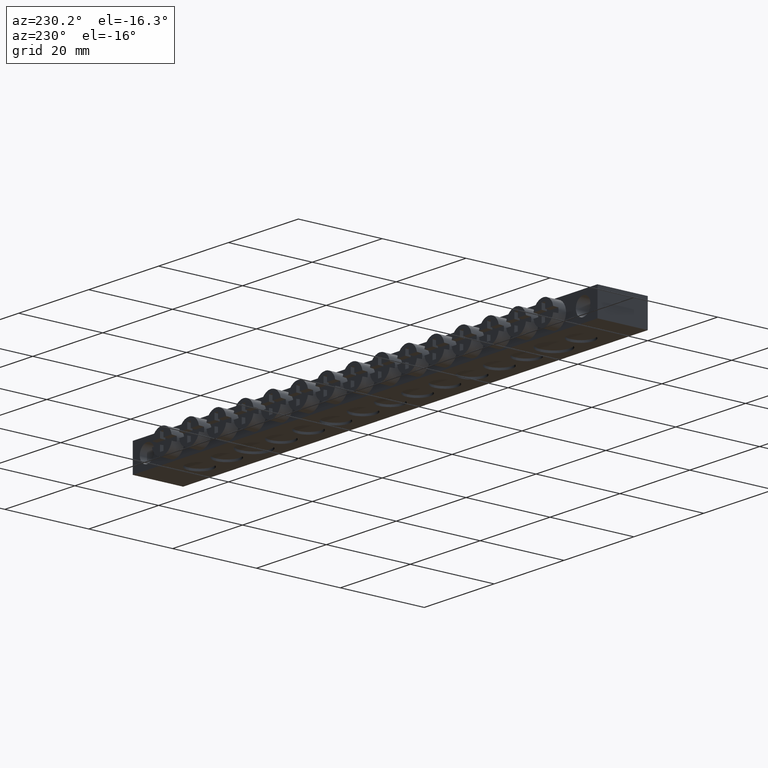
[diagram: clean part render]
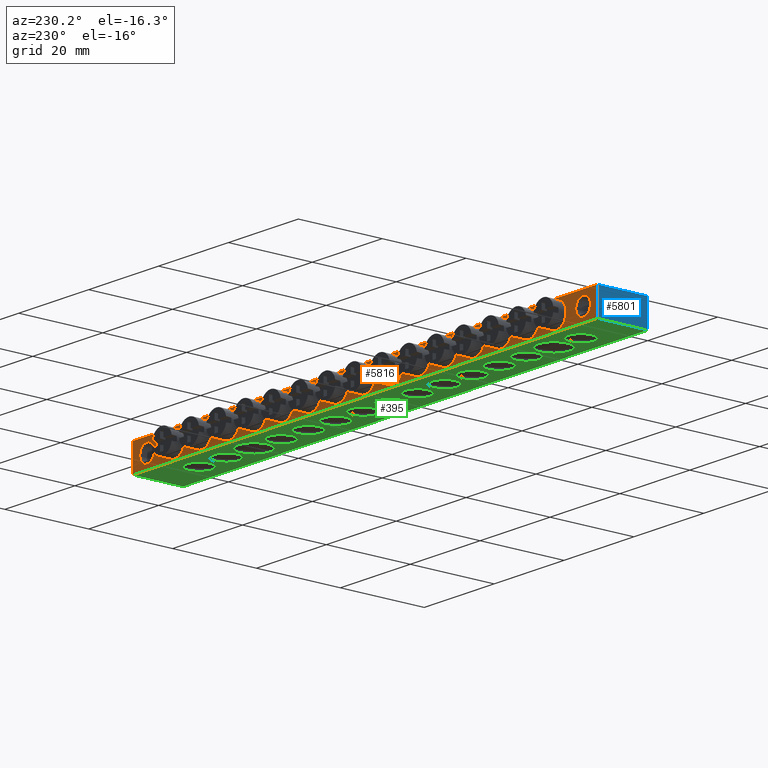
[diagram: same view with three faces highlighted in distinct colors, each labeled with its STEP entity id]
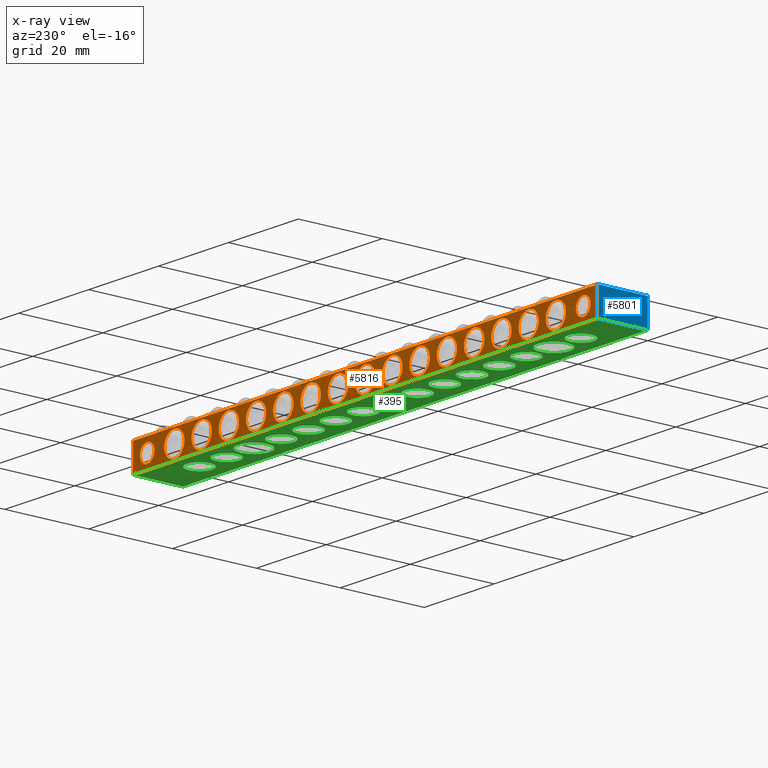
[diagram: x-ray of the same camera — body ghosted, the three highlighted faces saturated]
A machine part, auxiliary view with three faces highlighted in distinct colors.
The next image is the same camera in x-ray (body ghosted, the three faces saturated) — at least one of them is partly hidden behind the body in this view.
Their STEP definitions:

[orange] entity #5816 — the highlighted planar face has unit normal (0, -1, 0).
#119 = EDGE_CURVE ( 'NONE', #9495, #9546, #8546, .T. ) ;
#125 = EDGE_CURVE ( 'NONE', #9516, #9494, #8547, .T. ) ;
#130 = EDGE_CURVE ( 'NONE', #1650, #1657, #8539, .T. ) ;
#151 = EDGE_CURVE ( 'NONE', #1658, #1626, #8524, .T. ) ;
#173 = EDGE_CURVE ( 'NONE', #1634, #1649, #1105, .T. ) ;
#176 = EDGE_CURVE ( 'NONE', #5258, #5246, #1262, .T. ) ;
#197 = EDGE_CURVE ( 'NONE', #5463, #5439, #1327, .T. ) ;
#209 = EDGE_CURVE ( 'NONE', #5427, #5410, #971, .T. ) ;
#229 = EDGE_CURVE ( 'NONE', #4861, #5259, #1026, .T. ) ;
#243 = EDGE_CURVE ( 'NONE', #5260, #5244, #3627, .T. ) ;
#566 = EDGE_CURVE ( 'NONE', #5406, #5418, #6302, .T. ) ;
#572 = EDGE_CURVE ( 'NONE', #1162, #1170, #8514, .T. ) ;
#591 = EDGE_CURVE ( 'NONE', #5462, #5425, #6453, .T. ) ;
#600 = EDGE_CURVE ( 'NONE', #9534, #9518, #6481, .T. ) ;
#619 = EDGE_CURVE ( 'NONE', #5412, #5270, #6450, .T. ) ;
#971 = CIRCLE ( 'NONE', #1010, 2.899999999999999900 ) ;
#1010 = AXIS2_PLACEMENT_3D ( 'NONE', #7545, #7531, #7539 ) ;
#1026 = CIRCLE ( 'NONE', #1042, 2.899999999999999900 ) ;
#1042 = AXIS2_PLACEMENT_3D ( 'NONE', #7659, #7637, #7651 ) ;
#1105 = CIRCLE ( 'NONE', #1200, 2.899999999999999900 ) ;
#1162 = VERTEX_POINT ( 'NONE', #9141 ) ;
#1170 = VERTEX_POINT ( 'NONE', #9155 ) ;
#1183 = EDGE_LOOP ( 'NONE', ( #4802, #4773 ) ) ;
#1186 = EDGE_LOOP ( 'NONE', ( #4795, #4800 ) ) ;
#1190 = EDGE_LOOP ( 'NONE', ( #4798, #4776 ) ) ;
#1193 = EDGE_LOOP ( 'NONE', ( #4826, #4778 ) ) ;
#1198 = EDGE_LOOP ( 'NONE', ( #4818, #4809 ) ) ;
#1199 = EDGE_LOOP ( 'NONE', ( #4785, #4799 ) ) ;
#1200 = AXIS2_PLACEMENT_3D ( 'NONE', #1858, #1845, #1870 ) ;
#1202 = EDGE_LOOP ( 'NONE', ( #4827, #4821 ) ) ;
#1210 = EDGE_LOOP ( 'NONE', ( #4788, #4810 ) ) ;
#1224 = EDGE_LOOP ( 'NONE', ( #4792, #4789 ) ) ;
#1228 = EDGE_LOOP ( 'NONE', ( #4797, #4782 ) ) ;
#1232 = EDGE_LOOP ( 'NONE', ( #4784, #4775 ) ) ;
#1245 = EDGE_LOOP ( 'NONE', ( #4793, #4783, #4817, #4780 ) ) ;
#1249 = EDGE_LOOP ( 'NONE', ( #4786, #4770 ) ) ;
#1254 = AXIS2_PLACEMENT_3D ( 'NONE', #1855, #1856, #1857 ) ;
#1262 = CIRCLE ( 'NONE', #1254, 2.899999999999999900 ) ;
#1271 = EDGE_LOOP ( 'NONE', ( #4803, #4805 ) ) ;
#1279 = EDGE_LOOP ( 'NONE', ( #4811, #4812 ) ) ;
#1286 = EDGE_LOOP ( 'NONE', ( #4779, #4828 ) ) ;
#1327 = CIRCLE ( 'NONE', #1349, 2.899999999999999900 ) ;
#1349 = AXIS2_PLACEMENT_3D ( 'NONE', #7499, #7480, #7524 ) ;
#1551 = EDGE_LOOP ( 'NONE', ( #4769, #4768 ) ) ;
#1569 = EDGE_LOOP ( 'NONE', ( #4777, #4813 ) ) ;
#1578 = VERTEX_POINT ( 'NONE', #9124 ) ;
#1586 = VERTEX_POINT ( 'NONE', #9129 ) ;
#1618 = VERTEX_POINT ( 'NONE', #9153 ) ;
#1626 = VERTEX_POINT ( 'NONE', #9181 ) ;
#1634 = VERTEX_POINT ( 'NONE', #9222 ) ;
#1649 = VERTEX_POINT ( 'NONE', #9185 ) ;
#1650 = VERTEX_POINT ( 'NONE', #9207 ) ;
#1654 = VERTEX_POINT ( 'NONE', #9208 ) ;
#1657 = VERTEX_POINT ( 'NONE', #9200 ) ;
#1658 = VERTEX_POINT ( 'NONE', #9202 ) ;
#1659 = VERTEX_POINT ( 'NONE', #9203 ) ;
#1670 = DIRECTION ( 'NONE',  ( -0.0000000000000000000, 1.000000000000000000, -0.0000000000000000000 ) ) ;
#1674 = DIRECTION ( 'NONE',  ( 0.0000000000000000000, 0.0000000000000000000, -1.000000000000000000 ) ) ;
#1680 = CARTESIAN_POINT ( 'NONE',  ( 97.70000000000000300, 12.00000000000000000, 3.250000000000004000 ) ) ;
#1681 = DIRECTION ( 'NONE',  ( -0.0000000000000000000, 1.000000000000000000, -0.0000000000000000000 ) ) ;
#1684 = DIRECTION ( 'NONE',  ( 0.0000000000000000000, 0.0000000000000000000, -1.000000000000000000 ) ) ;
#1685 = CARTESIAN_POINT ( 'NONE',  ( 89.90000000000000600, 12.00000000000000000, 3.250000000000004000 ) ) ;
#1686 = VERTEX_POINT ( 'NONE', #9214 ) ;
#1688 = VERTEX_POINT ( 'NONE', #9215 ) ;
#1709 = DIRECTION ( 'NONE',  ( -0.0000000000000000000, 1.000000000000000000, -0.0000000000000000000 ) ) ;
#1710 = DIRECTION ( 'NONE',  ( 0.0000000000000000000, 0.0000000000000000000, -1.000000000000000000 ) ) ;
#1721 = CARTESIAN_POINT ( 'NONE',  ( 105.5000000000000100, 12.00000000000000000, 3.250000000000004000 ) ) ;
#1777 = CARTESIAN_POINT ( 'NONE',  ( 121.1000000000000100, 12.00000000000000000, 3.250000000000004000 ) ) ;
#1778 = DIRECTION ( 'NONE',  ( -0.0000000000000000000, 1.000000000000000000, -0.0000000000000000000 ) ) ;
#1779 = DIRECTION ( 'NONE',  ( 0.0000000000000000000, 0.0000000000000000000, -1.000000000000000000 ) ) ;
#1845 = DIRECTION ( 'NONE',  ( -0.0000000000000000000, 1.000000000000000000, -0.0000000000000000000 ) ) ;
#1855 = CARTESIAN_POINT ( 'NONE',  ( 27.50000000000002500, 12.00000000000000000, 3.250000000000004000 ) ) ;
#1856 = DIRECTION ( 'NONE',  ( -0.0000000000000000000, 1.000000000000000000, -0.0000000000000000000 ) ) ;
#1857 = DIRECTION ( 'NONE',  ( 0.0000000000000000000, 0.0000000000000000000, -1.000000000000000000 ) ) ;
#1858 = CARTESIAN_POINT ( 'NONE',  ( 113.3000000000000100, 12.00000000000000000, 3.250000000000004000 ) ) ;
#1870 = DIRECTION ( 'NONE',  ( 0.0000000000000000000, 0.0000000000000000000, -1.000000000000000000 ) ) ;
#3019 = CARTESIAN_POINT ( 'NONE',  ( 4.099999999999992500, 12.00000000000000000, 1.150000000000023900 ) ) ;
#3047 = CARTESIAN_POINT ( 'NONE',  ( 82.10397707256291300, 12.00000000000000000, 0.3500027270885571800 ) ) ;
#3061 = CARTESIAN_POINT ( 'NONE',  ( 97.70397707256290700, 12.00000000000000000, 0.3500027270885571800 ) ) ;
#3089 = CARTESIAN_POINT ( 'NONE',  ( 97.69602292743711300, 12.00000000000000000, 6.149997272911451600 ) ) ;
#3099 = CARTESIAN_POINT ( 'NONE',  ( 89.89602292743710200, 12.00000000000000000, 6.149997272911451600 ) ) ;
#3100 = CARTESIAN_POINT ( 'NONE',  ( 82.09602292743710400, 12.00000000000000000, 6.149997272911451600 ) ) ;
#3104 = CARTESIAN_POINT ( 'NONE',  ( 89.90397707256291000, 12.00000000000000000, 0.3500027270885571800 ) ) ;
#3627 = CIRCLE ( 'NONE', #3628, 2.899999999999999900 ) ;
#3628 = AXIS2_PLACEMENT_3D ( 'NONE', #7712, #7676, #7689 ) ;
#3711 = CARTESIAN_POINT ( 'NONE',  ( 50.89602292743710900, 12.00000000000000000, 6.149997272911451600 ) ) ;
#3727 = CARTESIAN_POINT ( 'NONE',  ( 35.29602292743710000, 12.00000000000000000, 6.149997272911451600 ) ) ;
#3831 = FACE_BOUND ( 'NONE', #1569, .T. ) ;
#3832 = PLANE ( 'NONE',  #6766 ) ;
#3833 = FACE_BOUND ( 'NONE', #1279, .T. ) ;
#3834 = CARTESIAN_POINT ( 'NONE',  ( 0.0000000000000000000, 12.00000000000000000, 6.500000000000000000 ) ) ;
#3835 = FACE_BOUND ( 'NONE', #1228, .T. ) ;
#3836 = FACE_BOUND ( 'NONE', #1183, .T. ) ;
#3837 = DIRECTION ( 'NONE',  ( 0.0000000000000000000, -1.000000000000000000, 0.0000000000000000000 ) ) ;
#3843 = FACE_BOUND ( 'NONE', #1224, .T. ) ;
#3848 = FACE_BOUND ( 'NONE', #1202, .T. ) ;
#3849 = FACE_BOUND ( 'NONE', #1190, .T. ) ;
#3850 = DIRECTION ( 'NONE',  ( 0.0000000000000000000, -0.0000000000000000000, -1.000000000000000000 ) ) ;
#3854 = FACE_BOUND ( 'NONE', #1551, .T. ) ;
#3855 = FACE_OUTER_BOUND ( 'NONE', #1245, .T. ) ;
#3856 = FACE_BOUND ( 'NONE', #1198, .T. ) ;
#3858 = FACE_BOUND ( 'NONE', #1232, .T. ) ;
#3860 = FACE_BOUND ( 'NONE', #1286, .T. ) ;
#3863 = FACE_BOUND ( 'NONE', #1199, .T. ) ;
#3864 = FACE_BOUND ( 'NONE', #1193, .T. ) ;
#3865 = FACE_BOUND ( 'NONE', #1271, .T. ) ;
#3867 = FACE_BOUND ( 'NONE', #1186, .T. ) ;
#3869 = FACE_BOUND ( 'NONE', #1249, .T. ) ;
#3872 = FACE_BOUND ( 'NONE', #1210, .T. ) ;
#4090 = CARTESIAN_POINT ( 'NONE',  ( 43.10397707256292000, 12.00000000000000000, 0.3500027270885576200 ) ) ;
#4110 = CARTESIAN_POINT ( 'NONE',  ( 58.70397707256292800, 12.00000000000000000, 0.3500027270885576200 ) ) ;
#4112 = CARTESIAN_POINT ( 'NONE',  ( 66.49602292743711000, 12.00000000000000000, 6.149997272911451600 ) ) ;
#4117 = CARTESIAN_POINT ( 'NONE',  ( 43.09602292743710400, 12.00000000000000000, 6.149997272911451600 ) ) ;
#4119 = CARTESIAN_POINT ( 'NONE',  ( 35.30397707256292300, 12.00000000000000000, 0.3500027270885576200 ) ) ;
#4121 = CARTESIAN_POINT ( 'NONE',  ( 50.90397707256292400, 12.00000000000000000, 0.3500027270885576200 ) ) ;
#4126 = CARTESIAN_POINT ( 'NONE',  ( 58.69602292743710600, 12.00000000000000000, 6.149997272911451600 ) ) ;
#4147 = EDGE_CURVE ( 'NONE', #5259, #4861, #6527, .T. ) ;
#4159 = EDGE_CURVE ( 'NONE', #5439, #5463, #6551, .T. ) ;
#4161 = EDGE_CURVE ( 'NONE', #1626, #1658, #6584, .T. ) ;
#4164 = EDGE_CURVE ( 'NONE', #5270, #5412, #6609, .T. ) ;
#4165 = EDGE_CURVE ( 'NONE', #5244, #5260, #6622, .T. ) ;
#4169 = EDGE_CURVE ( 'NONE', #5418, #5406, #6600, .T. ) ;
#4178 = EDGE_CURVE ( 'NONE', #1688, #1686, #9347, .T. ) ;
#4185 = EDGE_CURVE ( 'NONE', #1686, #1618, #8487, .T. ) ;
#4186 = EDGE_CURVE ( 'NONE', #1170, #1162, #6596, .T. ) ;
#4187 = EDGE_CURVE ( 'NONE', #1657, #1650, #6598, .T. ) ;
#4255 = EDGE_CURVE ( 'NONE', #1688, #1659, #8229, .T. ) ;
#4256 = EDGE_CURVE ( 'NONE', #9494, #9516, #6693, .T. ) ;
#4257 = EDGE_CURVE ( 'NONE', #9546, #9495, #6704, .T. ) ;
#4258 = EDGE_CURVE ( 'NONE', #5410, #5427, #6714, .T. ) ;
#4261 = EDGE_CURVE ( 'NONE', #5425, #5462, #6735, .T. ) ;
#4265 = EDGE_CURVE ( 'NONE', #9518, #9534, #6700, .T. ) ;
#4266 = EDGE_CURVE ( 'NONE', #1649, #1634, #6724, .T. ) ;
#4267 = EDGE_CURVE ( 'NONE', #5246, #5258, #6726, .T. ) ;
#4296 = AXIS2_PLACEMENT_3D ( 'NONE', #8885, #8853, #8895 ) ;
#4768 = ORIENTED_EDGE ( 'NONE', *, *, #5927, .F. ) ;
#4769 = ORIENTED_EDGE ( 'NONE', *, *, #5914, .F. ) ;
#4770 = ORIENTED_EDGE ( 'NONE', *, *, #4256, .F. ) ;
#4773 = ORIENTED_EDGE ( 'NONE', *, *, #4266, .F. ) ;
#4775 = ORIENTED_EDGE ( 'NONE', *, *, #4187, .F. ) ;
#4776 = ORIENTED_EDGE ( 'NONE', *, *, #4169, .F. ) ;
#4777 = ORIENTED_EDGE ( 'NONE', *, *, #151, .F. ) ;
#4778 = ORIENTED_EDGE ( 'NONE', *, *, #4186, .F. ) ;
#4779 = ORIENTED_EDGE ( 'NONE', *, *, #197, .F. ) ;
#4780 = ORIENTED_EDGE ( 'NONE', *, *, #4255, .T. ) ;
#4782 = ORIENTED_EDGE ( 'NONE', *, *, #5930, .F. ) ;
#4783 = ORIENTED_EDGE ( 'NONE', *, *, #4185, .F. ) ;
#4784 = ORIENTED_EDGE ( 'NONE', *, *, #130, .F. ) ;
#4785 = ORIENTED_EDGE ( 'NONE', *, *, #119, .F. ) ;
#4786 = ORIENTED_EDGE ( 'NONE', *, *, #125, .F. ) ;
#4788 = ORIENTED_EDGE ( 'NONE', *, *, #176, .F. ) ;
#4789 = ORIENTED_EDGE ( 'NONE', *, *, #4261, .F. ) ;
#4792 = ORIENTED_EDGE ( 'NONE', *, *, #591, .F. ) ;
#4793 = ORIENTED_EDGE ( 'NONE', *, *, #5908, .T. ) ;
#4795 = ORIENTED_EDGE ( 'NONE', *, *, #600, .F. ) ;
#4797 = ORIENTED_EDGE ( 'NONE', *, *, #5915, .F. ) ;
#4798 = ORIENTED_EDGE ( 'NONE', *, *, #566, .F. ) ;
#4799 = ORIENTED_EDGE ( 'NONE', *, *, #4257, .F. ) ;
#4800 = ORIENTED_EDGE ( 'NONE', *, *, #4265, .F. ) ;
#4802 = ORIENTED_EDGE ( 'NONE', *, *, #173, .F. ) ;
#4803 = ORIENTED_EDGE ( 'NONE', *, *, #229, .F. ) ;
#4805 = ORIENTED_EDGE ( 'NONE', *, *, #4147, .F. ) ;
#4809 = ORIENTED_EDGE ( 'NONE', *, *, #4258, .F. ) ;
#4810 = ORIENTED_EDGE ( 'NONE', *, *, #4267, .F. ) ;
#4811 = ORIENTED_EDGE ( 'NONE', *, *, #243, .F. ) ;
#4812 = ORIENTED_EDGE ( 'NONE', *, *, #4165, .F. ) ;
#4813 = ORIENTED_EDGE ( 'NONE', *, *, #4161, .F. ) ;
#4817 = ORIENTED_EDGE ( 'NONE', *, *, #4178, .F. ) ;
#4818 = ORIENTED_EDGE ( 'NONE', *, *, #209, .F. ) ;
#4821 = ORIENTED_EDGE ( 'NONE', *, *, #4164, .F. ) ;
#4826 = ORIENTED_EDGE ( 'NONE', *, *, #572, .F. ) ;
#4827 = ORIENTED_EDGE ( 'NONE', *, *, #619, .F. ) ;
#4828 = ORIENTED_EDGE ( 'NONE', *, *, #4159, .F. ) ;
#4861 = VERTEX_POINT ( 'NONE', #8355 ) ;
#5244 = VERTEX_POINT ( 'NONE', #8478 ) ;
#5246 = VERTEX_POINT ( 'NONE', #8436 ) ;
#5258 = VERTEX_POINT ( 'NONE', #8469 ) ;
#5259 = VERTEX_POINT ( 'NONE', #8466 ) ;
#5260 = VERTEX_POINT ( 'NONE', #8471 ) ;
#5270 = VERTEX_POINT ( 'NONE', #8463 ) ;
#5406 = VERTEX_POINT ( 'NONE', #4126 ) ;
#5410 = VERTEX_POINT ( 'NONE', #4090 ) ;
#5412 = VERTEX_POINT ( 'NONE', #4112 ) ;
#5418 = VERTEX_POINT ( 'NONE', #4110 ) ;
#5425 = VERTEX_POINT ( 'NONE', #4121 ) ;
#5427 = VERTEX_POINT ( 'NONE', #4117 ) ;
#5439 = VERTEX_POINT ( 'NONE', #4119 ) ;
#5462 = VERTEX_POINT ( 'NONE', #3711 ) ;
#5463 = VERTEX_POINT ( 'NONE', #3727 ) ;
#5782 = AXIS2_PLACEMENT_3D ( 'NONE', #8871, #8880, #8889 ) ;
#5816 = ADVANCED_FACE ( 'NONE', ( #3835, #3854, #3855, #3831, #3836, #3858, #3869, #3863, #3867, #3864, #3848, #3849, #3843, #3856, #3860, #3872, #3833, #3865 ), #3832, .F. ) ;
#5908 = EDGE_CURVE ( 'NONE', #1659, #1618, #9687, .T. ) ;
#5914 = EDGE_CURVE ( 'NONE', #1654, #9448, #6357, .T. ) ;
#5915 = EDGE_CURVE ( 'NONE', #1578, #1586, #6364, .T. ) ;
#5927 = EDGE_CURVE ( 'NONE', #9448, #1654, #6345, .T. ) ;
#5930 = EDGE_CURVE ( 'NONE', #1586, #1578, #6369, .T. ) ;
#6302 = CIRCLE ( 'NONE', #4296, 2.899999999999999900 ) ;
#6322 = AXIS2_PLACEMENT_3D ( 'NONE', #9725, #9729, #9702 ) ;
#6331 = AXIS2_PLACEMENT_3D ( 'NONE', #9788, #9792, #9779 ) ;
#6345 = CIRCLE ( 'NONE', #6371, 2.100000000000000100 ) ;
#6354 = AXIS2_PLACEMENT_3D ( 'NONE', #9731, #9706, #9719 ) ;
#6357 = CIRCLE ( 'NONE', #6322, 2.100000000000000100 ) ;
#6364 = CIRCLE ( 'NONE', #6354, 2.099999999999989900 ) ;
#6369 = CIRCLE ( 'NONE', #6331, 2.099999999999989900 ) ;
#6371 = AXIS2_PLACEMENT_3D ( 'NONE', #9762, #9764, #9771 ) ;
#6450 = CIRCLE ( 'NONE', #6492, 2.899999999999999900 ) ;
#6453 = CIRCLE ( 'NONE', #6498, 2.899999999999999900 ) ;
#6469 = AXIS2_PLACEMENT_3D ( 'NONE', #9032, #9012, #9011 ) ;
#6481 = CIRCLE ( 'NONE', #6469, 2.899999999999999900 ) ;
#6492 = AXIS2_PLACEMENT_3D ( 'NONE', #9065, #9086, #9066 ) ;
#6498 = AXIS2_PLACEMENT_3D ( 'NONE', #8984, #8964, #8951 ) ;
#6502 = AXIS2_PLACEMENT_3D ( 'NONE', #9279, #9290, #9275 ) ;
#6527 = CIRCLE ( 'NONE', #6502, 2.899999999999999900 ) ;
#6551 = CIRCLE ( 'NONE', #6552, 2.899999999999999900 ) ;
#6552 = AXIS2_PLACEMENT_3D ( 'NONE', #9328, #9322, #9308 ) ;
#6579 = AXIS2_PLACEMENT_3D ( 'NONE', #9309, #9337, #9339 ) ;
#6584 = CIRCLE ( 'NONE', #6593, 2.899999999999999900 ) ;
#6592 = VECTOR ( 'NONE', #8505, 1000.000000000000000 ) ;
#6593 = AXIS2_PLACEMENT_3D ( 'NONE', #9329, #9331, #9340 ) ;
#6595 = AXIS2_PLACEMENT_3D ( 'NONE', #8491, #8489, #8492 ) ;
#6596 = CIRCLE ( 'NONE', #6605, 2.899999999999999900 ) ;
#6598 = CIRCLE ( 'NONE', #6595, 2.899999999999999900 ) ;
#6600 = CIRCLE ( 'NONE', #6620, 2.899999999999999900 ) ;
#6605 = AXIS2_PLACEMENT_3D ( 'NONE', #8506, #8494, #8498 ) ;
#6609 = CIRCLE ( 'NONE', #6626, 2.899999999999999900 ) ;
#6616 = VECTOR ( 'NONE', #9360, 1000.000000000000000 ) ;
#6620 = AXIS2_PLACEMENT_3D ( 'NONE', #9357, #9373, #9379 ) ;
#6622 = CIRCLE ( 'NONE', #6579, 2.899999999999999900 ) ;
#6626 = AXIS2_PLACEMENT_3D ( 'NONE', #9332, #9334, #9335 ) ;
#6693 = CIRCLE ( 'NONE', #6703, 2.899999999999999900 ) ;
#6694 = AXIS2_PLACEMENT_3D ( 'NONE', #8261, #8278, #8284 ) ;
#6699 = AXIS2_PLACEMENT_3D ( 'NONE', #8298, #8260, #8274 ) ;
#6700 = CIRCLE ( 'NONE', #6725, 2.899999999999999900 ) ;
#6703 = AXIS2_PLACEMENT_3D ( 'NONE', #8281, #8285, #8275 ) ;
#6704 = CIRCLE ( 'NONE', #6752, 2.899999999999999900 ) ;
#6706 = AXIS2_PLACEMENT_3D ( 'NONE', #8291, #8297, #8292 ) ;
#6714 = CIRCLE ( 'NONE', #6694, 2.899999999999999900 ) ;
#6724 = CIRCLE ( 'NONE', #6699, 2.899999999999999900 ) ;
#6725 = AXIS2_PLACEMENT_3D ( 'NONE', #8268, #8277, #8299 ) ;
#6726 = CIRCLE ( 'NONE', #6731, 2.899999999999999900 ) ;
#6730 = VECTOR ( 'NONE', #8248, 1000.000000000000000 ) ;
#6731 = AXIS2_PLACEMENT_3D ( 'NONE', #8267, #8271, #8272 ) ;
#6735 = CIRCLE ( 'NONE', #6706, 2.899999999999999900 ) ;
#6752 = AXIS2_PLACEMENT_3D ( 'NONE', #8283, #8282, #8265 ) ;
#6766 = AXIS2_PLACEMENT_3D ( 'NONE', #3834, #3837, #3850 ) ;
#6830 = VECTOR ( 'NONE', #9672, 1000.000000000000000 ) ;
#7480 = DIRECTION ( 'NONE',  ( -0.0000000000000000000, 1.000000000000000000, -0.0000000000000000000 ) ) ;
#7499 = CARTESIAN_POINT ( 'NONE',  ( 35.30000000000001100, 12.00000000000000000, 3.250000000000004000 ) ) ;
#7524 = DIRECTION ( 'NONE',  ( 0.0000000000000000000, 0.0000000000000000000, -1.000000000000000000 ) ) ;
#7531 = DIRECTION ( 'NONE',  ( -0.0000000000000000000, 1.000000000000000000, -0.0000000000000000000 ) ) ;
#7539 = DIRECTION ( 'NONE',  ( 0.0000000000000000000, 0.0000000000000000000, -1.000000000000000000 ) ) ;
#7545 = CARTESIAN_POINT ( 'NONE',  ( 43.10000000000001600, 12.00000000000000000, 3.250000000000004000 ) ) ;
#7637 = DIRECTION ( 'NONE',  ( -0.0000000000000000000, 1.000000000000000000, -0.0000000000000000000 ) ) ;
#7651 = DIRECTION ( 'NONE',  ( 0.0000000000000000000, 0.0000000000000000000, -1.000000000000000000 ) ) ;
#7659 = CARTESIAN_POINT ( 'NONE',  ( 11.90000000000002200, 12.00000000000000000, 3.250000000000004000 ) ) ;
#7676 = DIRECTION ( 'NONE',  ( -0.0000000000000000000, 1.000000000000000000, -0.0000000000000000000 ) ) ;
#7689 = DIRECTION ( 'NONE',  ( 0.0000000000000000000, 0.0000000000000000000, -1.000000000000000000 ) ) ;
#7712 = CARTESIAN_POINT ( 'NONE',  ( 19.70000000000002400, 12.00000000000000000, 3.250000000000004000 ) ) ;
#8229 = LINE ( 'NONE', #8245, #6730 ) ;
#8245 = CARTESIAN_POINT ( 'NONE',  ( 133.0000000000000000, 12.00000000000000000, 6.500000000000000000 ) ) ;
#8248 = DIRECTION ( 'NONE',  ( -0.0000000000000000000, -0.0000000000000000000, -1.000000000000000000 ) ) ;
#8260 = DIRECTION ( 'NONE',  ( -0.0000000000000000000, 1.000000000000000000, -0.0000000000000000000 ) ) ;
#8261 = CARTESIAN_POINT ( 'NONE',  ( 43.10000000000001600, 12.00000000000000000, 3.250000000000004000 ) ) ;
#8265 = DIRECTION ( 'NONE',  ( 0.0000000000000000000, 0.0000000000000000000, -1.000000000000000000 ) ) ;
#8267 = CARTESIAN_POINT ( 'NONE',  ( 27.50000000000002500, 12.00000000000000000, 3.250000000000004000 ) ) ;
#8268 = CARTESIAN_POINT ( 'NONE',  ( 82.10000000000000900, 12.00000000000000000, 3.250000000000004000 ) ) ;
#8271 = DIRECTION ( 'NONE',  ( -0.0000000000000000000, 1.000000000000000000, -0.0000000000000000000 ) ) ;
#8272 = DIRECTION ( 'NONE',  ( -1.196361017915039400E-015, 0.0000000000000000000, -1.000000000000000000 ) ) ;
#8274 = DIRECTION ( 'NONE',  ( 0.0000000000000000000, 0.0000000000000000000, -1.000000000000000000 ) ) ;
#8275 = DIRECTION ( 'NONE',  ( 0.0000000000000000000, 0.0000000000000000000, -1.000000000000000000 ) ) ;
#8277 = DIRECTION ( 'NONE',  ( -0.0000000000000000000, 1.000000000000000000, -0.0000000000000000000 ) ) ;
#8278 = DIRECTION ( 'NONE',  ( -0.0000000000000000000, 1.000000000000000000, -0.0000000000000000000 ) ) ;
#8281 = CARTESIAN_POINT ( 'NONE',  ( 97.70000000000000300, 12.00000000000000000, 3.250000000000004000 ) ) ;
#8282 = DIRECTION ( 'NONE',  ( -0.0000000000000000000, 1.000000000000000000, -0.0000000000000000000 ) ) ;
#8283 = CARTESIAN_POINT ( 'NONE',  ( 89.90000000000000600, 12.00000000000000000, 3.250000000000004000 ) ) ;
#8284 = DIRECTION ( 'NONE',  ( -2.392722035830078900E-015, 0.0000000000000000000, -1.000000000000000000 ) ) ;
#8285 = DIRECTION ( 'NONE',  ( -0.0000000000000000000, 1.000000000000000000, -0.0000000000000000000 ) ) ;
#8291 = CARTESIAN_POINT ( 'NONE',  ( 50.90000000000001300, 12.00000000000000000, 3.250000000000004000 ) ) ;
#8292 = DIRECTION ( 'NONE',  ( -2.392722035830078900E-015, 0.0000000000000000000, -1.000000000000000000 ) ) ;
#8297 = DIRECTION ( 'NONE',  ( -0.0000000000000000000, 1.000000000000000000, -0.0000000000000000000 ) ) ;
#8298 = CARTESIAN_POINT ( 'NONE',  ( 113.3000000000000100, 12.00000000000000000, 3.250000000000004000 ) ) ;
#8299 = DIRECTION ( 'NONE',  ( 0.0000000000000000000, 0.0000000000000000000, -1.000000000000000000 ) ) ;
#8355 = CARTESIAN_POINT ( 'NONE',  ( 11.89602292743711200, 12.00000000000000000, 6.149997272911451600 ) ) ;
#8436 = CARTESIAN_POINT ( 'NONE',  ( 27.50397707256293200, 12.00000000000000000, 0.3500027270885576200 ) ) ;
#8463 = CARTESIAN_POINT ( 'NONE',  ( 66.50397707256291800, 12.00000000000000000, 0.3500027270885571800 ) ) ;
#8466 = CARTESIAN_POINT ( 'NONE',  ( 11.90397707256293100, 12.00000000000000000, 0.3500027270885576200 ) ) ;
#8469 = CARTESIAN_POINT ( 'NONE',  ( 27.49602292743711400, 12.00000000000000000, 6.149997272911451600 ) ) ;
#8471 = CARTESIAN_POINT ( 'NONE',  ( 19.69602292743711300, 12.00000000000000000, 6.149997272911451600 ) ) ;
#8478 = CARTESIAN_POINT ( 'NONE',  ( 19.70397707256293200, 12.00000000000000000, 0.3500027270885576200 ) ) ;
#8487 = LINE ( 'NONE', #8504, #6592 ) ;
#8489 = DIRECTION ( 'NONE',  ( -0.0000000000000000000, 1.000000000000000000, -0.0000000000000000000 ) ) ;
#8491 = CARTESIAN_POINT ( 'NONE',  ( 105.5000000000000100, 12.00000000000000000, 3.250000000000004000 ) ) ;
#8492 = DIRECTION ( 'NONE',  ( 0.0000000000000000000, 0.0000000000000000000, -1.000000000000000000 ) ) ;
#8494 = DIRECTION ( 'NONE',  ( -0.0000000000000000000, 1.000000000000000000, -0.0000000000000000000 ) ) ;
#8498 = DIRECTION ( 'NONE',  ( 0.0000000000000000000, 0.0000000000000000000, -1.000000000000000000 ) ) ;
#8504 = CARTESIAN_POINT ( 'NONE',  ( 0.0000000000000000000, 12.00000000000000000, 6.500000000000000000 ) ) ;
#8505 = DIRECTION ( 'NONE',  ( -0.0000000000000000000, -0.0000000000000000000, -1.000000000000000000 ) ) ;
#8506 = CARTESIAN_POINT ( 'NONE',  ( 74.30000000000002600, 12.00000000000000000, 3.250000000000004000 ) ) ;
#8514 = CIRCLE ( 'NONE', #5782, 2.899999999999999900 ) ;
#8521 = AXIS2_PLACEMENT_3D ( 'NONE', #1777, #1778, #1779 ) ;
#8524 = CIRCLE ( 'NONE', #8521, 2.899999999999999900 ) ;
#8533 = AXIS2_PLACEMENT_3D ( 'NONE', #1685, #1670, #1674 ) ;
#8534 = AXIS2_PLACEMENT_3D ( 'NONE', #1680, #1681, #1684 ) ;
#8539 = CIRCLE ( 'NONE', #8540, 2.899999999999999900 ) ;
#8540 = AXIS2_PLACEMENT_3D ( 'NONE', #1721, #1709, #1710 ) ;
#8546 = CIRCLE ( 'NONE', #8533, 2.899999999999999900 ) ;
#8547 = CIRCLE ( 'NONE', #8534, 2.899999999999999900 ) ;
#8853 = DIRECTION ( 'NONE',  ( -0.0000000000000000000, 1.000000000000000000, -0.0000000000000000000 ) ) ;
#8871 = CARTESIAN_POINT ( 'NONE',  ( 74.30000000000002600, 12.00000000000000000, 3.250000000000004000 ) ) ;
#8880 = DIRECTION ( 'NONE',  ( -0.0000000000000000000, 1.000000000000000000, -0.0000000000000000000 ) ) ;
#8885 = CARTESIAN_POINT ( 'NONE',  ( 58.70000000000001700, 12.00000000000000000, 3.250000000000004000 ) ) ;
#8889 = DIRECTION ( 'NONE',  ( 0.0000000000000000000, 0.0000000000000000000, -1.000000000000000000 ) ) ;
#8895 = DIRECTION ( 'NONE',  ( 0.0000000000000000000, 0.0000000000000000000, -1.000000000000000000 ) ) ;
#8951 = DIRECTION ( 'NONE',  ( 0.0000000000000000000, 0.0000000000000000000, -1.000000000000000000 ) ) ;
#8964 = DIRECTION ( 'NONE',  ( -0.0000000000000000000, 1.000000000000000000, -0.0000000000000000000 ) ) ;
#8984 = CARTESIAN_POINT ( 'NONE',  ( 50.90000000000001300, 12.00000000000000000, 3.250000000000004000 ) ) ;
#9011 = DIRECTION ( 'NONE',  ( 0.0000000000000000000, 0.0000000000000000000, -1.000000000000000000 ) ) ;
#9012 = DIRECTION ( 'NONE',  ( -0.0000000000000000000, 1.000000000000000000, -0.0000000000000000000 ) ) ;
#9032 = CARTESIAN_POINT ( 'NONE',  ( 82.10000000000000900, 12.00000000000000000, 3.250000000000004000 ) ) ;
#9065 = CARTESIAN_POINT ( 'NONE',  ( 66.50000000000001400, 12.00000000000000000, 3.250000000000004000 ) ) ;
#9066 = DIRECTION ( 'NONE',  ( 0.0000000000000000000, 0.0000000000000000000, -1.000000000000000000 ) ) ;
#9086 = DIRECTION ( 'NONE',  ( -0.0000000000000000000, 1.000000000000000000, -0.0000000000000000000 ) ) ;
#9124 = CARTESIAN_POINT ( 'NONE',  ( 128.9000000000000100, 12.00000000000000000, 5.349999999999998800 ) ) ;
#9129 = CARTESIAN_POINT ( 'NONE',  ( 128.9000000000000100, 12.00000000000000000, 1.150000000000019500 ) ) ;
#9141 = CARTESIAN_POINT ( 'NONE',  ( 74.29602292743712200, 12.00000000000000000, 6.149997272911451600 ) ) ;
#9153 = CARTESIAN_POINT ( 'NONE',  ( 0.0000000000000000000, 12.00000000000000000, 0.0000000000000000000 ) ) ;
#9155 = CARTESIAN_POINT ( 'NONE',  ( 74.30397707256291500, 12.00000000000000000, 0.3500027270885571800 ) ) ;
#9181 = CARTESIAN_POINT ( 'NONE',  ( 121.1039770725629100, 12.00000000000000000, 0.3500027270885571800 ) ) ;
#9185 = CARTESIAN_POINT ( 'NONE',  ( 113.3039770725629200, 12.00000000000000000, 0.3500027270885571800 ) ) ;
#9200 = CARTESIAN_POINT ( 'NONE',  ( 105.5039770725629200, 12.00000000000000000, 0.3500027270885571800 ) ) ;
#9202 = CARTESIAN_POINT ( 'NONE',  ( 121.0960229274371000, 12.00000000000000000, 6.149997272911451600 ) ) ;
#9203 = CARTESIAN_POINT ( 'NONE',  ( 133.0000000000000000, 12.00000000000000000, 0.0000000000000000000 ) ) ;
#9207 = CARTESIAN_POINT ( 'NONE',  ( 105.4960229274371100, 12.00000000000000000, 6.149997272911451600 ) ) ;
#9208 = CARTESIAN_POINT ( 'NONE',  ( 4.099999999999992500, 12.00000000000000000, 5.350000000000024500 ) ) ;
#9214 = CARTESIAN_POINT ( 'NONE',  ( 0.0000000000000000000, 12.00000000000000000, 6.500000000000000000 ) ) ;
#9215 = CARTESIAN_POINT ( 'NONE',  ( 133.0000000000000000, 12.00000000000000000, 6.500000000000000000 ) ) ;
#9222 = CARTESIAN_POINT ( 'NONE',  ( 113.2960229274371100, 12.00000000000000000, 6.149997272911451600 ) ) ;
#9275 = DIRECTION ( 'NONE',  ( -1.794541526872559300E-015, 0.0000000000000000000, -1.000000000000000000 ) ) ;
#9279 = CARTESIAN_POINT ( 'NONE',  ( 11.90000000000002200, 12.00000000000000000, 3.250000000000004000 ) ) ;
#9290 = DIRECTION ( 'NONE',  ( -0.0000000000000000000, 1.000000000000000000, -0.0000000000000000000 ) ) ;
#9308 = DIRECTION ( 'NONE',  ( -2.392722035830078900E-015, 0.0000000000000000000, -1.000000000000000000 ) ) ;
#9309 = CARTESIAN_POINT ( 'NONE',  ( 19.70000000000002400, 12.00000000000000000, 3.250000000000004000 ) ) ;
#9322 = DIRECTION ( 'NONE',  ( -0.0000000000000000000, 1.000000000000000000, -0.0000000000000000000 ) ) ;
#9328 = CARTESIAN_POINT ( 'NONE',  ( 35.30000000000001100, 12.00000000000000000, 3.250000000000004000 ) ) ;
#9329 = CARTESIAN_POINT ( 'NONE',  ( 121.1000000000000100, 12.00000000000000000, 3.250000000000004000 ) ) ;
#9331 = DIRECTION ( 'NONE',  ( -0.0000000000000000000, 1.000000000000000000, -0.0000000000000000000 ) ) ;
#9332 = CARTESIAN_POINT ( 'NONE',  ( 66.50000000000001400, 12.00000000000000000, 3.250000000000004000 ) ) ;
#9334 = DIRECTION ( 'NONE',  ( -0.0000000000000000000, 1.000000000000000000, -0.0000000000000000000 ) ) ;
#9335 = DIRECTION ( 'NONE',  ( 0.0000000000000000000, 0.0000000000000000000, -1.000000000000000000 ) ) ;
#9337 = DIRECTION ( 'NONE',  ( -0.0000000000000000000, 1.000000000000000000, -0.0000000000000000000 ) ) ;
#9339 = DIRECTION ( 'NONE',  ( -1.196361017915039400E-015, 0.0000000000000000000, -1.000000000000000000 ) ) ;
#9340 = DIRECTION ( 'NONE',  ( 0.0000000000000000000, 0.0000000000000000000, -1.000000000000000000 ) ) ;
#9347 = LINE ( 'NONE', #9358, #6616 ) ;
#9357 = CARTESIAN_POINT ( 'NONE',  ( 58.70000000000001700, 12.00000000000000000, 3.250000000000004000 ) ) ;
#9358 = CARTESIAN_POINT ( 'NONE',  ( 0.0000000000000000000, 12.00000000000000000, 6.500000000000000000 ) ) ;
#9360 = DIRECTION ( 'NONE',  ( -1.000000000000000000, -0.0000000000000000000, -0.0000000000000000000 ) ) ;
#9373 = DIRECTION ( 'NONE',  ( -0.0000000000000000000, 1.000000000000000000, -0.0000000000000000000 ) ) ;
#9379 = DIRECTION ( 'NONE',  ( -2.392722035830078900E-015, 0.0000000000000000000, -1.000000000000000000 ) ) ;
#9448 = VERTEX_POINT ( 'NONE', #3019 ) ;
#9494 = VERTEX_POINT ( 'NONE', #3061 ) ;
#9495 = VERTEX_POINT ( 'NONE', #3099 ) ;
#9516 = VERTEX_POINT ( 'NONE', #3089 ) ;
#9518 = VERTEX_POINT ( 'NONE', #3047 ) ;
#9534 = VERTEX_POINT ( 'NONE', #3100 ) ;
#9546 = VERTEX_POINT ( 'NONE', #3104 ) ;
#9672 = DIRECTION ( 'NONE',  ( -1.000000000000000000, -0.0000000000000000000, -0.0000000000000000000 ) ) ;
#9687 = LINE ( 'NONE', #9697, #6830 ) ;
#9697 = CARTESIAN_POINT ( 'NONE',  ( 0.0000000000000000000, 12.00000000000000000, 0.0000000000000000000 ) ) ;
#9702 = DIRECTION ( 'NONE',  ( 0.0000000000000000000, 0.0000000000000000000, 1.000000000000000000 ) ) ;
#9706 = DIRECTION ( 'NONE',  ( -0.0000000000000000000, 1.000000000000000000, -0.0000000000000000000 ) ) ;
#9719 = DIRECTION ( 'NONE',  ( 0.0000000000000000000, 0.0000000000000000000, -1.000000000000000000 ) ) ;
#9725 = CARTESIAN_POINT ( 'NONE',  ( 4.099999999999992500, 12.00000000000000000, 3.250000000000024400 ) ) ;
#9729 = DIRECTION ( 'NONE',  ( 0.0000000000000000000, 1.000000000000000000, 0.0000000000000000000 ) ) ;
#9731 = CARTESIAN_POINT ( 'NONE',  ( 128.9000000000000100, 12.00000000000000000, 3.250000000000009300 ) ) ;
#9762 = CARTESIAN_POINT ( 'NONE',  ( 4.099999999999992500, 12.00000000000000000, 3.250000000000024400 ) ) ;
#9764 = DIRECTION ( 'NONE',  ( 0.0000000000000000000, 1.000000000000000000, 0.0000000000000000000 ) ) ;
#9771 = DIRECTION ( 'NONE',  ( 0.0000000000000000000, 0.0000000000000000000, 1.000000000000000000 ) ) ;
#9779 = DIRECTION ( 'NONE',  ( 0.0000000000000000000, 0.0000000000000000000, -1.000000000000000000 ) ) ;
#9788 = CARTESIAN_POINT ( 'NONE',  ( 128.9000000000000100, 12.00000000000000000, 3.250000000000009300 ) ) ;
#9792 = DIRECTION ( 'NONE',  ( -0.0000000000000000000, 1.000000000000000000, -0.0000000000000000000 ) ) ;

[blue] entity #5801 — the highlighted planar face has unit normal (1, 0, 0).
#1273 = EDGE_LOOP ( 'NONE', ( #4616, #4627, #4609, #4597 ) ) ;
#1604 = VERTEX_POINT ( 'NONE', #9114 ) ;
#1618 = VERTEX_POINT ( 'NONE', #9153 ) ;
#1672 = VERTEX_POINT ( 'NONE', #9210 ) ;
#1686 = VERTEX_POINT ( 'NONE', #9214 ) ;
#3746 = FACE_OUTER_BOUND ( 'NONE', #1273, .T. ) ;
#3749 = PLANE ( 'NONE',  #6738 ) ;
#3755 = CARTESIAN_POINT ( 'NONE',  ( 0.0000000000000000000, 0.0000000000000000000, 6.500000000000000000 ) ) ;
#3776 = DIRECTION ( 'NONE',  ( 1.000000000000000000, 0.0000000000000000000, 0.0000000000000000000 ) ) ;
#3777 = DIRECTION ( 'NONE',  ( 0.0000000000000000000, 0.0000000000000000000, -1.000000000000000000 ) ) ;
#4137 = EDGE_CURVE ( 'NONE', #1618, #1672, #9252, .T. ) ;
#4154 = EDGE_CURVE ( 'NONE', #1686, #1604, #9269, .T. ) ;
#4185 = EDGE_CURVE ( 'NONE', #1686, #1618, #8487, .T. ) ;
#4195 = EDGE_CURVE ( 'NONE', #1604, #1672, #8009, .T. ) ;
#4597 = ORIENTED_EDGE ( 'NONE', *, *, #4185, .T. ) ;
#4609 = ORIENTED_EDGE ( 'NONE', *, *, #4154, .F. ) ;
#4616 = ORIENTED_EDGE ( 'NONE', *, *, #4137, .T. ) ;
#4627 = ORIENTED_EDGE ( 'NONE', *, *, #4195, .F. ) ;
#5801 = ADVANCED_FACE ( 'NONE', ( #3746 ), #3749, .F. ) ;
#6512 = VECTOR ( 'NONE', #9312, 1000.000000000000000 ) ;
#6518 = VECTOR ( 'NONE', #9254, 1000.000000000000000 ) ;
#6592 = VECTOR ( 'NONE', #8505, 1000.000000000000000 ) ;
#6621 = VECTOR ( 'NONE', #7980, 1000.000000000000000 ) ;
#6738 = AXIS2_PLACEMENT_3D ( 'NONE', #3755, #3776, #3777 ) ;
#7975 = CARTESIAN_POINT ( 'NONE',  ( 0.0000000000000000000, 0.0000000000000000000, 6.500000000000000000 ) ) ;
#7980 = DIRECTION ( 'NONE',  ( -0.0000000000000000000, -0.0000000000000000000, -1.000000000000000000 ) ) ;
#8009 = LINE ( 'NONE', #7975, #6621 ) ;
#8487 = LINE ( 'NONE', #8504, #6592 ) ;
#8504 = CARTESIAN_POINT ( 'NONE',  ( 0.0000000000000000000, 12.00000000000000000, 6.500000000000000000 ) ) ;
#8505 = DIRECTION ( 'NONE',  ( -0.0000000000000000000, -0.0000000000000000000, -1.000000000000000000 ) ) ;
#9114 = CARTESIAN_POINT ( 'NONE',  ( 0.0000000000000000000, 0.0000000000000000000, 6.500000000000000000 ) ) ;
#9153 = CARTESIAN_POINT ( 'NONE',  ( 0.0000000000000000000, 12.00000000000000000, 0.0000000000000000000 ) ) ;
#9210 = CARTESIAN_POINT ( 'NONE',  ( 0.0000000000000000000, 0.0000000000000000000, 0.0000000000000000000 ) ) ;
#9214 = CARTESIAN_POINT ( 'NONE',  ( 0.0000000000000000000, 12.00000000000000000, 6.500000000000000000 ) ) ;
#9246 = CARTESIAN_POINT ( 'NONE',  ( 0.0000000000000000000, 0.0000000000000000000, 0.0000000000000000000 ) ) ;
#9252 = LINE ( 'NONE', #9246, #6518 ) ;
#9254 = DIRECTION ( 'NONE',  ( -0.0000000000000000000, -1.000000000000000000, -0.0000000000000000000 ) ) ;
#9269 = LINE ( 'NONE', #9272, #6512 ) ;
#9272 = CARTESIAN_POINT ( 'NONE',  ( 0.0000000000000000000, 0.0000000000000000000, 6.500000000000000000 ) ) ;
#9312 = DIRECTION ( 'NONE',  ( -0.0000000000000000000, -1.000000000000000000, -0.0000000000000000000 ) ) ;

[green] entity #395 — the highlighted planar face has unit normal (0, 0, -1).
#395 = ADVANCED_FACE ( 'NONE', ( #7140, #7191, #7139, #7173, #7166, #7186, #7223, #7220, #7227, #7192, #7204, #7219, #7196, #7224, #7217, #7208 ), #7231, .T. ) ;
#1187 = EDGE_LOOP ( 'NONE', ( #4661, #4723 ) ) ;
#1192 = EDGE_LOOP ( 'NONE', ( #4732, #4716 ) ) ;
#1195 = EDGE_LOOP ( 'NONE', ( #4763, #4715 ) ) ;
#1201 = EDGE_LOOP ( 'NONE', ( #4651, #4663 ) ) ;
#1205 = EDGE_LOOP ( 'NONE', ( #4705, #4720 ) ) ;
#1219 = EDGE_LOOP ( 'NONE', ( #4759, #4721 ) ) ;
#1220 = EDGE_LOOP ( 'NONE', ( #4685, #4734 ) ) ;
#1241 = EDGE_LOOP ( 'NONE', ( #4658, #4671 ) ) ;
#1243 = EDGE_LOOP ( 'NONE', ( #4760, #4756 ) ) ;
#1244 = EDGE_LOOP ( 'NONE', ( #4733, #4744 ) ) ;
#1291 = EDGE_LOOP ( 'NONE', ( #4688, #4697 ) ) ;
#1296 = EDGE_LOOP ( 'NONE', ( #4712, #4714 ) ) ;
#1311 = EDGE_LOOP ( 'NONE', ( #4689, #4745 ) ) ;
#1313 = EDGE_LOOP ( 'NONE', ( #4703, #4662, #4717, #4674 ) ) ;
#1317 = EDGE_LOOP ( 'NONE', ( #4650, #4656 ) ) ;
#1322 = EDGE_LOOP ( 'NONE', ( #4743, #4692 ) ) ;
#1613 = VERTEX_POINT ( 'NONE', #9142 ) ;
#1614 = VERTEX_POINT ( 'NONE', #9146 ) ;
#1618 = VERTEX_POINT ( 'NONE', #9153 ) ;
#1637 = VERTEX_POINT ( 'NONE', #9175 ) ;
#1659 = VERTEX_POINT ( 'NONE', #9203 ) ;
#1672 = VERTEX_POINT ( 'NONE', #9210 ) ;
#1673 = VERTEX_POINT ( 'NONE', #9194 ) ;
#1679 = VERTEX_POINT ( 'NONE', #9195 ) ;
#1700 = VERTEX_POINT ( 'NONE', #9179 ) ;
#2122 = AXIS2_PLACEMENT_3D ( 'NONE', #7230, #7226, #7222 ) ;
#2991 = CARTESIAN_POINT ( 'NONE',  ( 118.1000000000000100, 5.999999999999999100, 0.0000000000000000000 ) ) ;
#2999 = CARTESIAN_POINT ( 'NONE',  ( 53.90000000000002000, 5.999999999999858800, 0.0000000000000000000 ) ) ;
#3002 = CARTESIAN_POINT ( 'NONE',  ( 109.2500000000000100, 5.999999999999949400, 0.0000000000000000000 ) ) ;
#3023 = CARTESIAN_POINT ( 'NONE',  ( 79.10000000000000900, 5.999999999999929800, 0.0000000000000000000 ) ) ;
#3024 = CARTESIAN_POINT ( 'NONE',  ( 86.90000000000000600, 5.999999999999948500, 0.0000000000000000000 ) ) ;
#3026 = CARTESIAN_POINT ( 'NONE',  ( 69.50000000000000000, 5.999999999999894300, 0.0000000000000000000 ) ) ;
#3027 = CARTESIAN_POINT ( 'NONE',  ( 124.1000000000000200, 5.999999999999999100, 0.0000000000000000000 ) ) ;
#3037 = CARTESIAN_POINT ( 'NONE',  ( 71.29999999999999700, 5.999999999999913000, 0.0000000000000000000 ) ) ;
#3039 = CARTESIAN_POINT ( 'NONE',  ( 85.10000000000000900, 5.999999999999929800, 0.0000000000000000000 ) ) ;
#3042 = CARTESIAN_POINT ( 'NONE',  ( 47.89999999999999900, 5.999999999999858800, 0.0000000000000000000 ) ) ;
#3048 = CARTESIAN_POINT ( 'NONE',  ( 94.70000000000000300, 5.999999999999949400, 0.0000000000000000000 ) ) ;
#3049 = CARTESIAN_POINT ( 'NONE',  ( 63.50000000000000000, 5.999999999999894300, 0.0000000000000000000 ) ) ;
#3054 = CARTESIAN_POINT ( 'NONE',  ( 38.30000000000001800, 5.999999999999823300, 0.0000000000000000000 ) ) ;
#3057 = CARTESIAN_POINT ( 'NONE',  ( 24.50000000000000000, 5.999999999999804600, 0.0000000000000000000 ) ) ;
#3058 = CARTESIAN_POINT ( 'NONE',  ( 101.7500000000000000, 5.999999999999950300, 0.0000000000000000000 ) ) ;
#3068 = CARTESIAN_POINT ( 'NONE',  ( 100.7000000000000200, 5.999999999999949400, 0.0000000000000000000 ) ) ;
#3069 = CARTESIAN_POINT ( 'NONE',  ( 61.70000000000001700, 5.999999999999876500, 0.0000000000000000000 ) ) ;
#3070 = CARTESIAN_POINT ( 'NONE',  ( 116.3000000000000100, 5.999999999999944900, 0.0000000000000000000 ) ) ;
#3071 = CARTESIAN_POINT ( 'NONE',  ( 32.30000000000000400, 5.999999999999823300, 0.0000000000000000000 ) ) ;
#3073 = CARTESIAN_POINT ( 'NONE',  ( 40.10000000000000100, 5.999999999999841000, 0.0000000000000000000 ) ) ;
#3077 = CARTESIAN_POINT ( 'NONE',  ( 77.30000000000001100, 5.999999999999913000, 0.0000000000000000000 ) ) ;
#3086 = CARTESIAN_POINT ( 'NONE',  ( 92.90000000000000600, 5.999999999999948500, 0.0000000000000000000 ) ) ;
#3094 = CARTESIAN_POINT ( 'NONE',  ( 55.70000000000000300, 5.999999999999876500, 0.0000000000000000000 ) ) ;
#3106 = CARTESIAN_POINT ( 'NONE',  ( 110.3000000000000100, 5.999999999999944900, 0.0000000000000000000 ) ) ;
#3107 = CARTESIAN_POINT ( 'NONE',  ( 46.10000000000002300, 5.999999999999841000, 0.0000000000000000000 ) ) ;
#3968 = CARTESIAN_POINT ( 'NONE',  ( 74.30000000000001100, 5.999999999999913000, 0.0000000000000000000 ) ) ;
#3974 = DIRECTION ( 'NONE',  ( -1.000000000000000000, 0.0000000000000000000, 0.0000000000000000000 ) ) ;
#3989 = DIRECTION ( 'NONE',  ( 0.0000000000000000000, 0.0000000000000000000, -1.000000000000000000 ) ) ;
#4011 = DIRECTION ( 'NONE',  ( 0.0000000000000000000, 0.0000000000000000000, -1.000000000000000000 ) ) ;
#4013 = CARTESIAN_POINT ( 'NONE',  ( 82.10000000000000900, 5.999999999999929800, 0.0000000000000000000 ) ) ;
#4014 = DIRECTION ( 'NONE',  ( -1.000000000000000000, 0.0000000000000000000, 0.0000000000000000000 ) ) ;
#4017 = CARTESIAN_POINT ( 'NONE',  ( 11.90000000000000000, 6.000000000000000000, 0.0000000000000000000 ) ) ;
#4022 = DIRECTION ( 'NONE',  ( -1.000000000000000000, 0.0000000000000000000, 0.0000000000000000000 ) ) ;
#4026 = DIRECTION ( 'NONE',  ( 0.0000000000000000000, 0.0000000000000000000, -1.000000000000000000 ) ) ;
#4031 = CARTESIAN_POINT ( 'NONE',  ( 105.5000000000000100, 5.999999999999949400, 0.0000000000000000000 ) ) ;
#4034 = DIRECTION ( 'NONE',  ( 0.0000000000000000000, 0.0000000000000000000, -1.000000000000000000 ) ) ;
#4041 = DIRECTION ( 'NONE',  ( -1.000000000000000000, 0.0000000000000000000, 0.0000000000000000000 ) ) ;
#4046 = DIRECTION ( 'NONE',  ( 0.0000000000000000000, 0.0000000000000000000, -1.000000000000000000 ) ) ;
#4057 = CARTESIAN_POINT ( 'NONE',  ( 43.10000000000001600, 5.999999999999841000, 0.0000000000000000000 ) ) ;
#4060 = DIRECTION ( 'NONE',  ( -1.000000000000000000, 0.0000000000000000000, 0.0000000000000000000 ) ) ;
#4067 = DIRECTION ( 'NONE',  ( 0.0000000000000000000, 0.0000000000000000000, -1.000000000000000000 ) ) ;
#4068 = DIRECTION ( 'NONE',  ( -1.000000000000000000, 0.0000000000000000000, 0.0000000000000000000 ) ) ;
#4069 = CARTESIAN_POINT ( 'NONE',  ( 27.50000000000001100, 5.999999999999804600, 0.0000000000000000000 ) ) ;
#4074 = DIRECTION ( 'NONE',  ( 0.0000000000000000000, 0.0000000000000000000, -1.000000000000000000 ) ) ;
#4079 = DIRECTION ( 'NONE',  ( -1.000000000000000000, 0.0000000000000000000, 0.0000000000000000000 ) ) ;
#4087 = CARTESIAN_POINT ( 'NONE',  ( 35.30000000000001100, 5.999999999999823300, 0.0000000000000000000 ) ) ;
#4127 = EDGE_CURVE ( 'NONE', #9502, #9469, #6466, .T. ) ;
#4132 = EDGE_CURVE ( 'NONE', #9484, #9526, #6561, .T. ) ;
#4133 = EDGE_CURVE ( 'NONE', #9525, #9529, #6562, .T. ) ;
#4134 = EDGE_CURVE ( 'NONE', #9488, #9520, #6526, .T. ) ;
#4137 = EDGE_CURVE ( 'NONE', #1618, #1672, #9252, .T. ) ;
#4143 = EDGE_CURVE ( 'NONE', #1614, #1659, #9301, .T. ) ;
#4145 = EDGE_CURVE ( 'NONE', #9471, #9504, #6536, .T. ) ;
#4148 = EDGE_CURVE ( 'NONE', #9473, #9460, #6555, .T. ) ;
#4150 = EDGE_CURVE ( 'NONE', #9464, #9481, #6504, .T. ) ;
#4151 = EDGE_CURVE ( 'NONE', #9489, #9470, #6546, .T. ) ;
#4167 = EDGE_CURVE ( 'NONE', #9466, #9515, #6608, .T. ) ;
#4168 = EDGE_CURVE ( 'NONE', #9497, #9485, #6614, .T. ) ;
#4170 = EDGE_CURVE ( 'NONE', #1672, #1614, #9338, .T. ) ;
#4180 = EDGE_CURVE ( 'NONE', #9491, #1637, #6580, .T. ) ;
#4188 = EDGE_CURVE ( 'NONE', #1679, #1673, #6572, .T. ) ;
#4260 = EDGE_CURVE ( 'NONE', #9483, #9475, #6748, .T. ) ;
#4262 = EDGE_CURVE ( 'NONE', #1613, #1700, #6736, .T. ) ;
#4263 = EDGE_CURVE ( 'NONE', #9486, #9521, #6720, .T. ) ;
#4650 = ORIENTED_EDGE ( 'NONE', *, *, #5869, .F. ) ;
#4651 = ORIENTED_EDGE ( 'NONE', *, *, #5867, .F. ) ;
#4656 = ORIENTED_EDGE ( 'NONE', *, *, #4133, .F. ) ;
#4658 = ORIENTED_EDGE ( 'NONE', *, *, #5865, .F. ) ;
#4661 = ORIENTED_EDGE ( 'NONE', *, *, #5905, .F. ) ;
#4662 = ORIENTED_EDGE ( 'NONE', *, *, #5908, .F. ) ;
#4663 = ORIENTED_EDGE ( 'NONE', *, *, #4134, .F. ) ;
#4671 = ORIENTED_EDGE ( 'NONE', *, *, #4180, .F. ) ;
#4674 = ORIENTED_EDGE ( 'NONE', *, *, #4170, .F. ) ;
#4685 = ORIENTED_EDGE ( 'NONE', *, *, #5896, .F. ) ;
#4688 = ORIENTED_EDGE ( 'NONE', *, *, #5887, .F. ) ;
#4689 = ORIENTED_EDGE ( 'NONE', *, *, #5855, .F. ) ;
#4692 = ORIENTED_EDGE ( 'NONE', *, *, #4263, .F. ) ;
#4697 = ORIENTED_EDGE ( 'NONE', *, *, #4148, .F. ) ;
#4703 = ORIENTED_EDGE ( 'NONE', *, *, #4137, .F. ) ;
#4705 = ORIENTED_EDGE ( 'NONE', *, *, #5899, .F. ) ;
#4712 = ORIENTED_EDGE ( 'NONE', *, *, #5840, .F. ) ;
#4714 = ORIENTED_EDGE ( 'NONE', *, *, #4145, .F. ) ;
#4715 = ORIENTED_EDGE ( 'NONE', *, *, #4168, .F. ) ;
#4716 = ORIENTED_EDGE ( 'NONE', *, *, #4260, .F. ) ;
#4717 = ORIENTED_EDGE ( 'NONE', *, *, #4143, .F. ) ;
#4720 = ORIENTED_EDGE ( 'NONE', *, *, #4132, .F. ) ;
#4721 = ORIENTED_EDGE ( 'NONE', *, *, #4127, .F. ) ;
#4723 = ORIENTED_EDGE ( 'NONE', *, *, #4151, .F. ) ;
#4732 = ORIENTED_EDGE ( 'NONE', *, *, #5913, .F. ) ;
#4733 = ORIENTED_EDGE ( 'NONE', *, *, #5854, .F. ) ;
#4734 = ORIENTED_EDGE ( 'NONE', *, *, #4262, .F. ) ;
#4743 = ORIENTED_EDGE ( 'NONE', *, *, #5885, .F. ) ;
#4744 = ORIENTED_EDGE ( 'NONE', *, *, #4150, .F. ) ;
#4745 = ORIENTED_EDGE ( 'NONE', *, *, #4188, .F. ) ;
#4756 = ORIENTED_EDGE ( 'NONE', *, *, #4167, .F. ) ;
#4759 = ORIENTED_EDGE ( 'NONE', *, *, #5856, .F. ) ;
#4760 = ORIENTED_EDGE ( 'NONE', *, *, #5898, .F. ) ;
#4763 = ORIENTED_EDGE ( 'NONE', *, *, #5890, .F. ) ;
#5840 = EDGE_CURVE ( 'NONE', #9504, #9471, #6808, .T. ) ;
#5854 = EDGE_CURVE ( 'NONE', #9481, #9464, #6763, .T. ) ;
#5855 = EDGE_CURVE ( 'NONE', #1673, #1679, #6777, .T. ) ;
#5856 = EDGE_CURVE ( 'NONE', #9469, #9502, #6795, .T. ) ;
#5865 = EDGE_CURVE ( 'NONE', #1637, #9491, #6770, .T. ) ;
#5867 = EDGE_CURVE ( 'NONE', #9520, #9488, #6833, .T. ) ;
#5869 = EDGE_CURVE ( 'NONE', #9529, #9525, #6853, .T. ) ;
#5885 = EDGE_CURVE ( 'NONE', #9521, #9486, #6855, .T. ) ;
#5887 = EDGE_CURVE ( 'NONE', #9460, #9473, #6838, .T. ) ;
#5890 = EDGE_CURVE ( 'NONE', #9485, #9497, #6850, .T. ) ;
#5896 = EDGE_CURVE ( 'NONE', #1700, #1613, #6865, .T. ) ;
#5898 = EDGE_CURVE ( 'NONE', #9515, #9466, #6822, .T. ) ;
#5899 = EDGE_CURVE ( 'NONE', #9526, #9484, #6867, .T. ) ;
#5905 = EDGE_CURVE ( 'NONE', #9470, #9489, #6871, .T. ) ;
#5908 = EDGE_CURVE ( 'NONE', #1659, #1618, #9687, .T. ) ;
#5913 = EDGE_CURVE ( 'NONE', #9475, #9483, #6888, .T. ) ;
#6466 = CIRCLE ( 'NONE', #6467, 3.750000000000003600 ) ;
#6467 = AXIS2_PLACEMENT_3D ( 'NONE', #9223, #9247, #9256 ) ;
#6500 = AXIS2_PLACEMENT_3D ( 'NONE', #9231, #9259, #9232 ) ;
#6504 = CIRCLE ( 'NONE', #6511, 3.000000000000002700 ) ;
#6511 = AXIS2_PLACEMENT_3D ( 'NONE', #9297, #9298, #9299 ) ;
#6513 = VECTOR ( 'NONE', #9285, 1000.000000000000000 ) ;
#6514 = AXIS2_PLACEMENT_3D ( 'NONE', #9282, #9288, #9304 ) ;
#6517 = AXIS2_PLACEMENT_3D ( 'NONE', #9245, #9244, #9266 ) ;
#6518 = VECTOR ( 'NONE', #9254, 1000.000000000000000 ) ;
#6520 = AXIS2_PLACEMENT_3D ( 'NONE', #9261, #9251, #9229 ) ;
#6526 = CIRCLE ( 'NONE', #6500, 3.000000000000009800 ) ;
#6530 = AXIS2_PLACEMENT_3D ( 'NONE', #9271, #9305, #9291 ) ;
#6532 = AXIS2_PLACEMENT_3D ( 'NONE', #9281, #9270, #9295 ) ;
#6536 = CIRCLE ( 'NONE', #6532, 3.000000000000002700 ) ;
#6546 = CIRCLE ( 'NONE', #6530, 3.000000000000002700 ) ;
#6555 = CIRCLE ( 'NONE', #6514, 3.000000000000009800 ) ;
#6561 = CIRCLE ( 'NONE', #6517, 3.000000000000009800 ) ;
#6562 = CIRCLE ( 'NONE', #6520, 3.000000000000009800 ) ;
#6572 = CIRCLE ( 'NONE', #6612, 2.999999999999999100 ) ;
#6574 = AXIS2_PLACEMENT_3D ( 'NONE', #9381, #9362, #9368 ) ;
#6580 = CIRCLE ( 'NONE', #6603, 3.000000000000009800 ) ;
#6603 = AXIS2_PLACEMENT_3D ( 'NONE', #9172, #9353, #8499 ) ;
#6604 = AXIS2_PLACEMENT_3D ( 'NONE', #9372, #9380, #9350 ) ;
#6608 = CIRCLE ( 'NONE', #6574, 3.000000000000002700 ) ;
#6610 = VECTOR ( 'NONE', #9364, 1000.000000000000000 ) ;
#6612 = AXIS2_PLACEMENT_3D ( 'NONE', #7986, #7979, #7994 ) ;
#6614 = CIRCLE ( 'NONE', #6604, 3.000000000000002700 ) ;
#6691 = AXIS2_PLACEMENT_3D ( 'NONE', #8276, #8279, #8266 ) ;
#6697 = AXIS2_PLACEMENT_3D ( 'NONE', #8294, #8301, #8269 ) ;
#6709 = AXIS2_PLACEMENT_3D ( 'NONE', #8287, #8288, #8290 ) ;
#6720 = CIRCLE ( 'NONE', #6697, 3.000000000000002700 ) ;
#6736 = CIRCLE ( 'NONE', #6691, 3.750000000000000000 ) ;
#6748 = CIRCLE ( 'NONE', #6709, 3.000000000000002700 ) ;
#6760 = AXIS2_PLACEMENT_3D ( 'NONE', #4013, #4026, #4014 ) ;
#6763 = CIRCLE ( 'NONE', #6760, 3.000000000000002700 ) ;
#6770 = CIRCLE ( 'NONE', #6771, 3.000000000000009800 ) ;
#6771 = AXIS2_PLACEMENT_3D ( 'NONE', #4069, #4046, #4079 ) ;
#6777 = CIRCLE ( 'NONE', #6792, 2.999999999999999100 ) ;
#6792 = AXIS2_PLACEMENT_3D ( 'NONE', #4017, #4011, #4022 ) ;
#6795 = CIRCLE ( 'NONE', #6805, 3.750000000000003600 ) ;
#6805 = AXIS2_PLACEMENT_3D ( 'NONE', #4031, #4034, #4041 ) ;
#6808 = CIRCLE ( 'NONE', #6814, 3.000000000000002700 ) ;
#6814 = AXIS2_PLACEMENT_3D ( 'NONE', #3968, #3989, #3974 ) ;
#6822 = CIRCLE ( 'NONE', #6824, 3.000000000000002700 ) ;
#6823 = AXIS2_PLACEMENT_3D ( 'NONE', #9611, #9637, #9623 ) ;
#6824 = AXIS2_PLACEMENT_3D ( 'NONE', #9671, #9662, #9646 ) ;
#6830 = VECTOR ( 'NONE', #9672, 1000.000000000000000 ) ;
#6833 = CIRCLE ( 'NONE', #6873, 3.000000000000009800 ) ;
#6838 = CIRCLE ( 'NONE', #6823, 3.000000000000009800 ) ;
#6847 = AXIS2_PLACEMENT_3D ( 'NONE', #9621, #9614, #9632 ) ;
#6848 = AXIS2_PLACEMENT_3D ( 'NONE', #4087, #4067, #4068 ) ;
#6850 = CIRCLE ( 'NONE', #6847, 3.000000000000002700 ) ;
#6851 = AXIS2_PLACEMENT_3D ( 'NONE', #9647, #9649, #9650 ) ;
#6853 = CIRCLE ( 'NONE', #6848, 3.000000000000009800 ) ;
#6855 = CIRCLE ( 'NONE', #6881, 3.000000000000002700 ) ;
#6861 = AXIS2_PLACEMENT_3D ( 'NONE', #9670, #9648, #9657 ) ;
#6865 = CIRCLE ( 'NONE', #6861, 3.750000000000000000 ) ;
#6867 = CIRCLE ( 'NONE', #6851, 3.000000000000009800 ) ;
#6871 = CIRCLE ( 'NONE', #6872, 3.000000000000002700 ) ;
#6872 = AXIS2_PLACEMENT_3D ( 'NONE', #9688, #9694, #9693 ) ;
#6873 = AXIS2_PLACEMENT_3D ( 'NONE', #4057, #4074, #4060 ) ;
#6881 = AXIS2_PLACEMENT_3D ( 'NONE', #9634, #9608, #9640 ) ;
#6885 = AXIS2_PLACEMENT_3D ( 'NONE', #9715, #9714, #9733 ) ;
#6888 = CIRCLE ( 'NONE', #6885, 3.000000000000002700 ) ;
#7139 = FACE_BOUND ( 'NONE', #1201, .T. ) ;
#7140 = FACE_BOUND ( 'NONE', #1241, .T. ) ;
#7166 = FACE_BOUND ( 'NONE', #1205, .T. ) ;
#7173 = FACE_BOUND ( 'NONE', #1291, .T. ) ;
#7186 = FACE_BOUND ( 'NONE', #1187, .T. ) ;
#7191 = FACE_BOUND ( 'NONE', #1317, .T. ) ;
#7192 = FACE_BOUND ( 'NONE', #1322, .T. ) ;
#7196 = FACE_BOUND ( 'NONE', #1192, .T. ) ;
#7204 = FACE_BOUND ( 'NONE', #1219, .T. ) ;
#7208 = FACE_OUTER_BOUND ( 'NONE', #1313, .T. ) ;
#7217 = FACE_BOUND ( 'NONE', #1311, .T. ) ;
#7219 = FACE_BOUND ( 'NONE', #1195, .T. ) ;
#7220 = FACE_BOUND ( 'NONE', #1244, .T. ) ;
#7222 = DIRECTION ( 'NONE',  ( -1.000000000000000000, 0.0000000000000000000, -0.0000000000000000000 ) ) ;
#7223 = FACE_BOUND ( 'NONE', #1296, .T. ) ;
#7224 = FACE_BOUND ( 'NONE', #1220, .T. ) ;
#7226 = DIRECTION ( 'NONE',  ( 0.0000000000000000000, 0.0000000000000000000, -1.000000000000000000 ) ) ;
#7227 = FACE_BOUND ( 'NONE', #1243, .T. ) ;
#7230 = CARTESIAN_POINT ( 'NONE',  ( 0.0000000000000000000, 12.00000000000000000, 0.0000000000000000000 ) ) ;
#7231 = PLANE ( 'NONE',  #2122 ) ;
#7979 = DIRECTION ( 'NONE',  ( 0.0000000000000000000, 0.0000000000000000000, -1.000000000000000000 ) ) ;
#7986 = CARTESIAN_POINT ( 'NONE',  ( 11.90000000000000000, 6.000000000000000000, 0.0000000000000000000 ) ) ;
#7994 = DIRECTION ( 'NONE',  ( -1.000000000000000000, 0.0000000000000000000, 0.0000000000000000000 ) ) ;
#8266 = DIRECTION ( 'NONE',  ( -1.000000000000000000, 0.0000000000000000000, 0.0000000000000000000 ) ) ;
#8269 = DIRECTION ( 'NONE',  ( -1.000000000000000000, 0.0000000000000000000, 0.0000000000000000000 ) ) ;
#8276 = CARTESIAN_POINT ( 'NONE',  ( 19.70000000000000300, 6.000000000000000000, 0.0000000000000000000 ) ) ;
#8279 = DIRECTION ( 'NONE',  ( 0.0000000000000000000, 0.0000000000000000000, -1.000000000000000000 ) ) ;
#8287 = CARTESIAN_POINT ( 'NONE',  ( 121.1000000000000100, 5.999999999999999100, 0.0000000000000000000 ) ) ;
#8288 = DIRECTION ( 'NONE',  ( 0.0000000000000000000, 0.0000000000000000000, -1.000000000000000000 ) ) ;
#8290 = DIRECTION ( 'NONE',  ( -1.000000000000000000, 0.0000000000000000000, 0.0000000000000000000 ) ) ;
#8294 = CARTESIAN_POINT ( 'NONE',  ( 97.70000000000000300, 5.999999999999949400, 0.0000000000000000000 ) ) ;
#8301 = DIRECTION ( 'NONE',  ( 0.0000000000000000000, 0.0000000000000000000, -1.000000000000000000 ) ) ;
#8499 = DIRECTION ( 'NONE',  ( -1.000000000000000000, 0.0000000000000000000, 0.0000000000000000000 ) ) ;
#9142 = CARTESIAN_POINT ( 'NONE',  ( 15.95000000000000300, 6.000000000000000900, 0.0000000000000000000 ) ) ;
#9146 = CARTESIAN_POINT ( 'NONE',  ( 133.0000000000000000, 0.0000000000000000000, 0.0000000000000000000 ) ) ;
#9153 = CARTESIAN_POINT ( 'NONE',  ( 0.0000000000000000000, 12.00000000000000000, 0.0000000000000000000 ) ) ;
#9172 = CARTESIAN_POINT ( 'NONE',  ( 27.50000000000001100, 5.999999999999804600, 0.0000000000000000000 ) ) ;
#9175 = CARTESIAN_POINT ( 'NONE',  ( 30.50000000000002100, 5.999999999999804600, 0.0000000000000000000 ) ) ;
#9179 = CARTESIAN_POINT ( 'NONE',  ( 23.45000000000000300, 6.000000000000000000, 0.0000000000000000000 ) ) ;
#9194 = CARTESIAN_POINT ( 'NONE',  ( 14.90000000000000000, 6.000000000000000000, 0.0000000000000000000 ) ) ;
#9195 = CARTESIAN_POINT ( 'NONE',  ( 8.900000000000002100, 6.000000000000000000, 0.0000000000000000000 ) ) ;
#9203 = CARTESIAN_POINT ( 'NONE',  ( 133.0000000000000000, 12.00000000000000000, 0.0000000000000000000 ) ) ;
#9210 = CARTESIAN_POINT ( 'NONE',  ( 0.0000000000000000000, 0.0000000000000000000, 0.0000000000000000000 ) ) ;
#9223 = CARTESIAN_POINT ( 'NONE',  ( 105.5000000000000100, 5.999999999999949400, 0.0000000000000000000 ) ) ;
#9229 = DIRECTION ( 'NONE',  ( -1.000000000000000000, 0.0000000000000000000, 0.0000000000000000000 ) ) ;
#9231 = CARTESIAN_POINT ( 'NONE',  ( 43.10000000000001600, 5.999999999999841000, 0.0000000000000000000 ) ) ;
#9232 = DIRECTION ( 'NONE',  ( -1.000000000000000000, 0.0000000000000000000, 0.0000000000000000000 ) ) ;
#9244 = DIRECTION ( 'NONE',  ( 0.0000000000000000000, 0.0000000000000000000, -1.000000000000000000 ) ) ;
#9245 = CARTESIAN_POINT ( 'NONE',  ( 58.70000000000001000, 5.999999999999876500, 0.0000000000000000000 ) ) ;
#9246 = CARTESIAN_POINT ( 'NONE',  ( 0.0000000000000000000, 0.0000000000000000000, 0.0000000000000000000 ) ) ;
#9247 = DIRECTION ( 'NONE',  ( 0.0000000000000000000, 0.0000000000000000000, -1.000000000000000000 ) ) ;
#9251 = DIRECTION ( 'NONE',  ( 0.0000000000000000000, 0.0000000000000000000, -1.000000000000000000 ) ) ;
#9252 = LINE ( 'NONE', #9246, #6518 ) ;
#9254 = DIRECTION ( 'NONE',  ( -0.0000000000000000000, -1.000000000000000000, -0.0000000000000000000 ) ) ;
#9256 = DIRECTION ( 'NONE',  ( -1.000000000000000000, 0.0000000000000000000, 0.0000000000000000000 ) ) ;
#9259 = DIRECTION ( 'NONE',  ( 0.0000000000000000000, 0.0000000000000000000, -1.000000000000000000 ) ) ;
#9261 = CARTESIAN_POINT ( 'NONE',  ( 35.30000000000001100, 5.999999999999823300, 0.0000000000000000000 ) ) ;
#9266 = DIRECTION ( 'NONE',  ( -1.000000000000000000, 0.0000000000000000000, 0.0000000000000000000 ) ) ;
#9270 = DIRECTION ( 'NONE',  ( 0.0000000000000000000, 0.0000000000000000000, -1.000000000000000000 ) ) ;
#9271 = CARTESIAN_POINT ( 'NONE',  ( 66.50000000000000000, 5.999999999999894300, 0.0000000000000000000 ) ) ;
#9277 = CARTESIAN_POINT ( 'NONE',  ( 133.0000000000000000, 0.0000000000000000000, 0.0000000000000000000 ) ) ;
#9281 = CARTESIAN_POINT ( 'NONE',  ( 74.30000000000001100, 5.999999999999913000, 0.0000000000000000000 ) ) ;
#9282 = CARTESIAN_POINT ( 'NONE',  ( 50.90000000000000600, 5.999999999999858800, 0.0000000000000000000 ) ) ;
#9285 = DIRECTION ( 'NONE',  ( 0.0000000000000000000, 1.000000000000000000, 0.0000000000000000000 ) ) ;
#9288 = DIRECTION ( 'NONE',  ( 0.0000000000000000000, 0.0000000000000000000, -1.000000000000000000 ) ) ;
#9291 = DIRECTION ( 'NONE',  ( -1.000000000000000000, 0.0000000000000000000, 0.0000000000000000000 ) ) ;
#9295 = DIRECTION ( 'NONE',  ( -1.000000000000000000, 0.0000000000000000000, 0.0000000000000000000 ) ) ;
#9297 = CARTESIAN_POINT ( 'NONE',  ( 82.10000000000000900, 5.999999999999929800, 0.0000000000000000000 ) ) ;
#9298 = DIRECTION ( 'NONE',  ( 0.0000000000000000000, 0.0000000000000000000, -1.000000000000000000 ) ) ;
#9299 = DIRECTION ( 'NONE',  ( -1.000000000000000000, 0.0000000000000000000, 0.0000000000000000000 ) ) ;
#9301 = LINE ( 'NONE', #9277, #6513 ) ;
#9304 = DIRECTION ( 'NONE',  ( -1.000000000000000000, 0.0000000000000000000, 0.0000000000000000000 ) ) ;
#9305 = DIRECTION ( 'NONE',  ( 0.0000000000000000000, 0.0000000000000000000, -1.000000000000000000 ) ) ;
#9338 = LINE ( 'NONE', #9374, #6610 ) ;
#9350 = DIRECTION ( 'NONE',  ( -1.000000000000000000, 0.0000000000000000000, 0.0000000000000000000 ) ) ;
#9353 = DIRECTION ( 'NONE',  ( 0.0000000000000000000, 0.0000000000000000000, -1.000000000000000000 ) ) ;
#9362 = DIRECTION ( 'NONE',  ( 0.0000000000000000000, 0.0000000000000000000, -1.000000000000000000 ) ) ;
#9364 = DIRECTION ( 'NONE',  ( 1.000000000000000000, 0.0000000000000000000, 0.0000000000000000000 ) ) ;
#9368 = DIRECTION ( 'NONE',  ( -1.000000000000000000, 0.0000000000000000000, 0.0000000000000000000 ) ) ;
#9372 = CARTESIAN_POINT ( 'NONE',  ( 113.3000000000000100, 5.999999999999944900, 0.0000000000000000000 ) ) ;
#9374 = CARTESIAN_POINT ( 'NONE',  ( 0.0000000000000000000, 0.0000000000000000000, 0.0000000000000000000 ) ) ;
#9380 = DIRECTION ( 'NONE',  ( 0.0000000000000000000, 0.0000000000000000000, -1.000000000000000000 ) ) ;
#9381 = CARTESIAN_POINT ( 'NONE',  ( 89.90000000000000600, 5.999999999999948500, 0.0000000000000000000 ) ) ;
#9460 = VERTEX_POINT ( 'NONE', #2999 ) ;
#9464 = VERTEX_POINT ( 'NONE', #3023 ) ;
#9466 = VERTEX_POINT ( 'NONE', #3024 ) ;
#9469 = VERTEX_POINT ( 'NONE', #3002 ) ;
#9470 = VERTEX_POINT ( 'NONE', #3026 ) ;
#9471 = VERTEX_POINT ( 'NONE', #3037 ) ;
#9473 = VERTEX_POINT ( 'NONE', #3042 ) ;
#9475 = VERTEX_POINT ( 'NONE', #3027 ) ;
#9481 = VERTEX_POINT ( 'NONE', #3039 ) ;
#9483 = VERTEX_POINT ( 'NONE', #2991 ) ;
#9484 = VERTEX_POINT ( 'NONE', #3094 ) ;
#9485 = VERTEX_POINT ( 'NONE', #3070 ) ;
#9486 = VERTEX_POINT ( 'NONE', #3048 ) ;
#9488 = VERTEX_POINT ( 'NONE', #3073 ) ;
#9489 = VERTEX_POINT ( 'NONE', #3049 ) ;
#9491 = VERTEX_POINT ( 'NONE', #3057 ) ;
#9497 = VERTEX_POINT ( 'NONE', #3106 ) ;
#9502 = VERTEX_POINT ( 'NONE', #3058 ) ;
#9504 = VERTEX_POINT ( 'NONE', #3077 ) ;
#9515 = VERTEX_POINT ( 'NONE', #3086 ) ;
#9520 = VERTEX_POINT ( 'NONE', #3107 ) ;
#9521 = VERTEX_POINT ( 'NONE', #3068 ) ;
#9525 = VERTEX_POINT ( 'NONE', #3071 ) ;
#9526 = VERTEX_POINT ( 'NONE', #3069 ) ;
#9529 = VERTEX_POINT ( 'NONE', #3054 ) ;
#9608 = DIRECTION ( 'NONE',  ( 0.0000000000000000000, 0.0000000000000000000, -1.000000000000000000 ) ) ;
#9611 = CARTESIAN_POINT ( 'NONE',  ( 50.90000000000000600, 5.999999999999858800, 0.0000000000000000000 ) ) ;
#9614 = DIRECTION ( 'NONE',  ( 0.0000000000000000000, 0.0000000000000000000, -1.000000000000000000 ) ) ;
#9621 = CARTESIAN_POINT ( 'NONE',  ( 113.3000000000000100, 5.999999999999944900, 0.0000000000000000000 ) ) ;
#9623 = DIRECTION ( 'NONE',  ( -1.000000000000000000, 0.0000000000000000000, 0.0000000000000000000 ) ) ;
#9632 = DIRECTION ( 'NONE',  ( -1.000000000000000000, 0.0000000000000000000, 0.0000000000000000000 ) ) ;
#9634 = CARTESIAN_POINT ( 'NONE',  ( 97.70000000000000300, 5.999999999999949400, 0.0000000000000000000 ) ) ;
#9637 = DIRECTION ( 'NONE',  ( 0.0000000000000000000, 0.0000000000000000000, -1.000000000000000000 ) ) ;
#9640 = DIRECTION ( 'NONE',  ( -1.000000000000000000, 0.0000000000000000000, 0.0000000000000000000 ) ) ;
#9646 = DIRECTION ( 'NONE',  ( -1.000000000000000000, 0.0000000000000000000, 0.0000000000000000000 ) ) ;
#9647 = CARTESIAN_POINT ( 'NONE',  ( 58.70000000000001000, 5.999999999999876500, 0.0000000000000000000 ) ) ;
#9648 = DIRECTION ( 'NONE',  ( 0.0000000000000000000, 0.0000000000000000000, -1.000000000000000000 ) ) ;
#9649 = DIRECTION ( 'NONE',  ( 0.0000000000000000000, 0.0000000000000000000, -1.000000000000000000 ) ) ;
#9650 = DIRECTION ( 'NONE',  ( -1.000000000000000000, 0.0000000000000000000, 0.0000000000000000000 ) ) ;
#9657 = DIRECTION ( 'NONE',  ( -1.000000000000000000, 0.0000000000000000000, 0.0000000000000000000 ) ) ;
#9662 = DIRECTION ( 'NONE',  ( 0.0000000000000000000, 0.0000000000000000000, -1.000000000000000000 ) ) ;
#9670 = CARTESIAN_POINT ( 'NONE',  ( 19.70000000000000300, 6.000000000000000000, 0.0000000000000000000 ) ) ;
#9671 = CARTESIAN_POINT ( 'NONE',  ( 89.90000000000000600, 5.999999999999948500, 0.0000000000000000000 ) ) ;
#9672 = DIRECTION ( 'NONE',  ( -1.000000000000000000, -0.0000000000000000000, -0.0000000000000000000 ) ) ;
#9687 = LINE ( 'NONE', #9697, #6830 ) ;
#9688 = CARTESIAN_POINT ( 'NONE',  ( 66.50000000000000000, 5.999999999999894300, 0.0000000000000000000 ) ) ;
#9693 = DIRECTION ( 'NONE',  ( -1.000000000000000000, 0.0000000000000000000, 0.0000000000000000000 ) ) ;
#9694 = DIRECTION ( 'NONE',  ( 0.0000000000000000000, 0.0000000000000000000, -1.000000000000000000 ) ) ;
#9697 = CARTESIAN_POINT ( 'NONE',  ( 0.0000000000000000000, 12.00000000000000000, 0.0000000000000000000 ) ) ;
#9714 = DIRECTION ( 'NONE',  ( 0.0000000000000000000, 0.0000000000000000000, -1.000000000000000000 ) ) ;
#9715 = CARTESIAN_POINT ( 'NONE',  ( 121.1000000000000100, 5.999999999999999100, 0.0000000000000000000 ) ) ;
#9733 = DIRECTION ( 'NONE',  ( -1.000000000000000000, 0.0000000000000000000, 0.0000000000000000000 ) ) ;